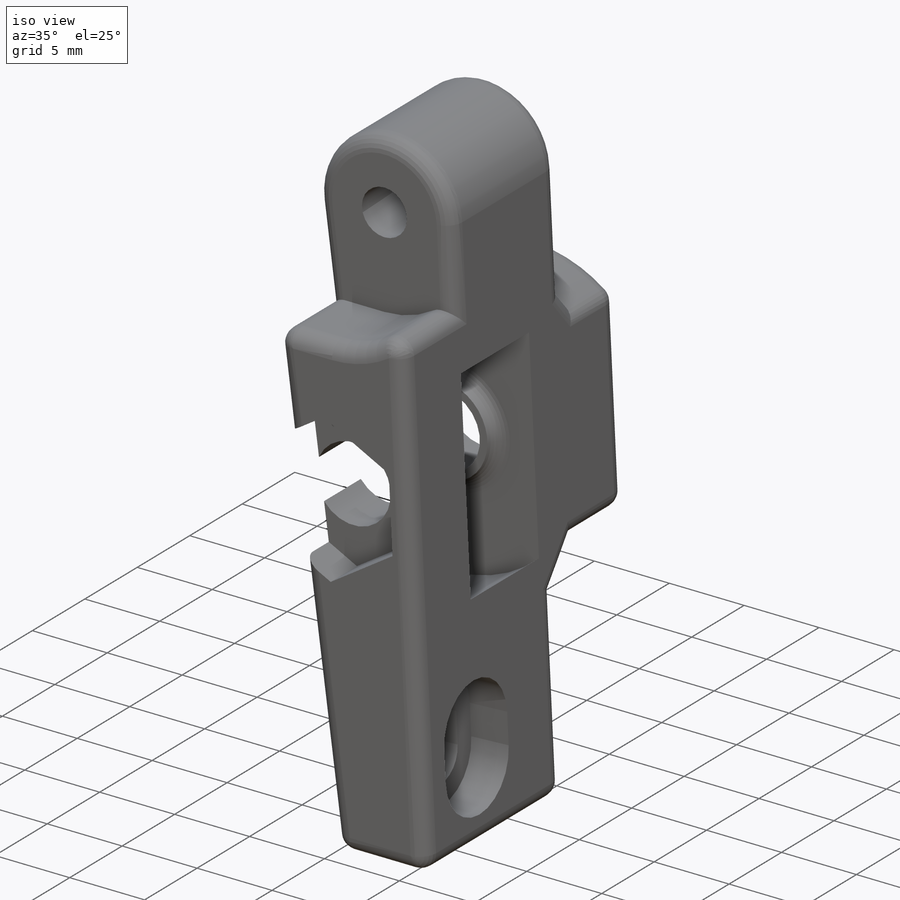
[diagram: iso view]
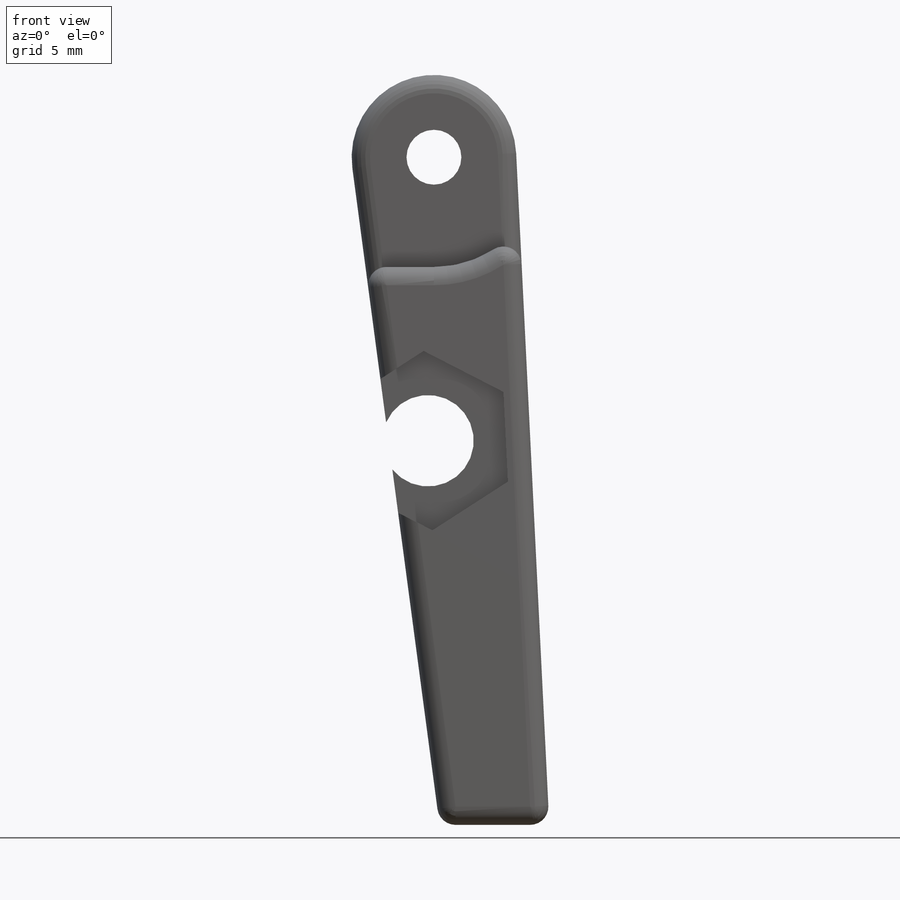
[diagram: front view]
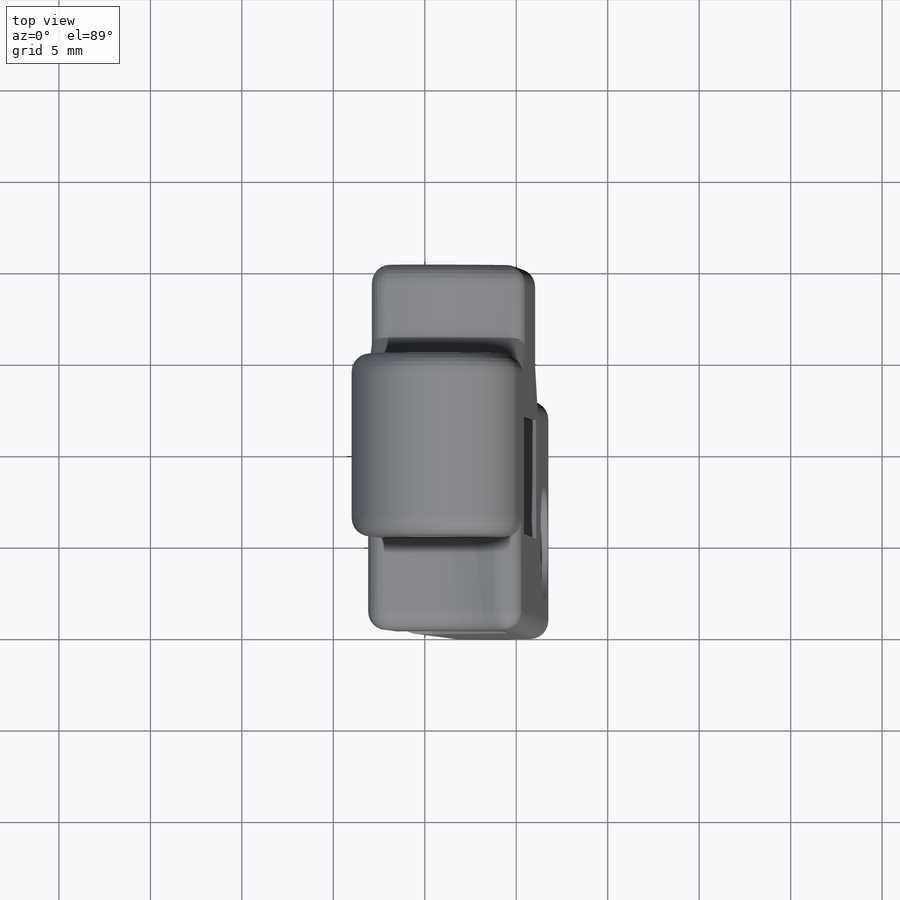
[diagram: top view]
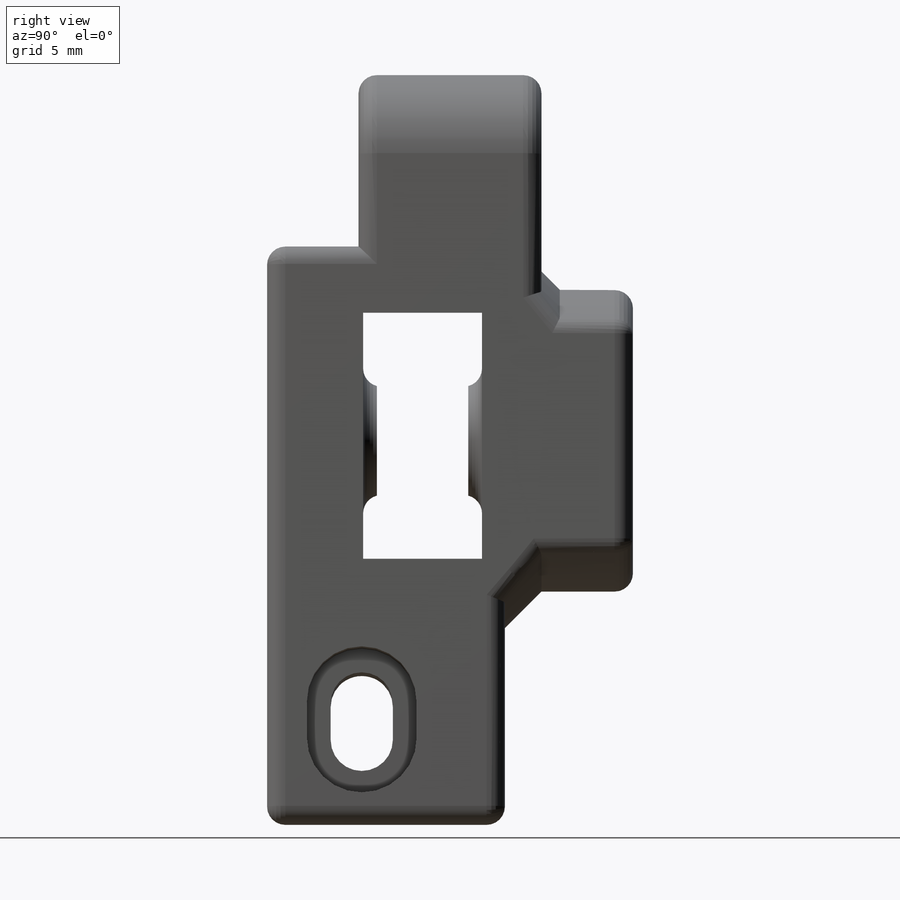
[diagram: right view]
SOLIDWORKS PART (.sldprt)
format: sldprt  version: not decoded by parser v0  size: 629,760 bytes
history: native  units: mm
features: sketch x14, extrude x7, cut_extrude x6, fillet x2, chamfer x2, material x1 (+13 scaffold rows collapsed)
feature tree (45):
  scaffold x13  (default folders/planes/origin — collapsed)
  material  "Material <not specified>"
  sketch  "reference"
  sketch  "Sketch2"  dims[D1=6.0mm D2=~38.405142mm]
  extrude  "Boss-Extrude1"  [1 undecoded]
  sketch  "Sketch5"  dims[D1=0.0mm]
  extrude  "Boss-Extrude2"  [1 undecoded]
  sketch  "Sketch8"  dims[D1=0.5mm D2=0.5mm]
  cut_extrude  "Cut-Extrude1"  Depth=0.5mm
  sketch  "Sketch9"
  extrude  "Boss-Extrude3"  [1 undecoded]
  sketch  "Sketch10"  dims[D1=0.0mm D2=0.0mm]
  extrude  "Boss-Extrude4"  [1 undecoded]
  sketch  "Sketch11"  dims[D1=0.5mm D2=0.0mm D3=0.0mm]
  extrude  "Boss-Extrude5"  [1 undecoded]
  sketch  "Sketch12"  dims[D1=0.0mm D2=0.0mm]
  cut_extrude  "Cut-Extrude2"  Depth=0.5mm
  sketch  "Sketch14"
  cut_extrude  "Cut-Extrude3"  Depth=2.5mm
  sketch  "Sketch15"  dims[c1.D1=~5.259658mm c1.D2=~6.546425mm c2.D1=2.0mm]
  cut_extrude  "Cut-Extrude4"  [1 undecoded]
  sketch  "Sketch17"  dims[c1.D1=6.0mm c1.D2=~0.906213mm c2.D1=1.5mm]
  cut_extrude  "Cut-Extrude6"  Depth=2.5mm
  sketch  "Sketch19"  dims[D1=2.0mm]
  cut_extrude  "Cut-Extrude7"  Depth=2mm
  sketch  "Sketch20"  dims[D1=0.0mm]
  extrude  "Boss-Extrude6"  Depth=0.25mm
  sketch  "Sketch21"  dims[D1=0.0mm]
  extrude  "Boss-Extrude7"  Depth=0.25mm
  fillet  "Fillet1"  Radius=1mm
  chamfer  "Chamfer2"  Distance=2mm Angle=45deg
  chamfer  "Chamfer3"  Distance=1mm Angle=45deg
  fillet  "Fillet7"  Radius=1mm
decode coverage: 22 of 31 modeling features carry decoded parameters
note: ~ marks probable driven/reference dimensions
note: 6 parameter values undecoded
summary: no parameter record found for 6 features
note: suppression state not decoded; provenance and decode notes live in map.json
